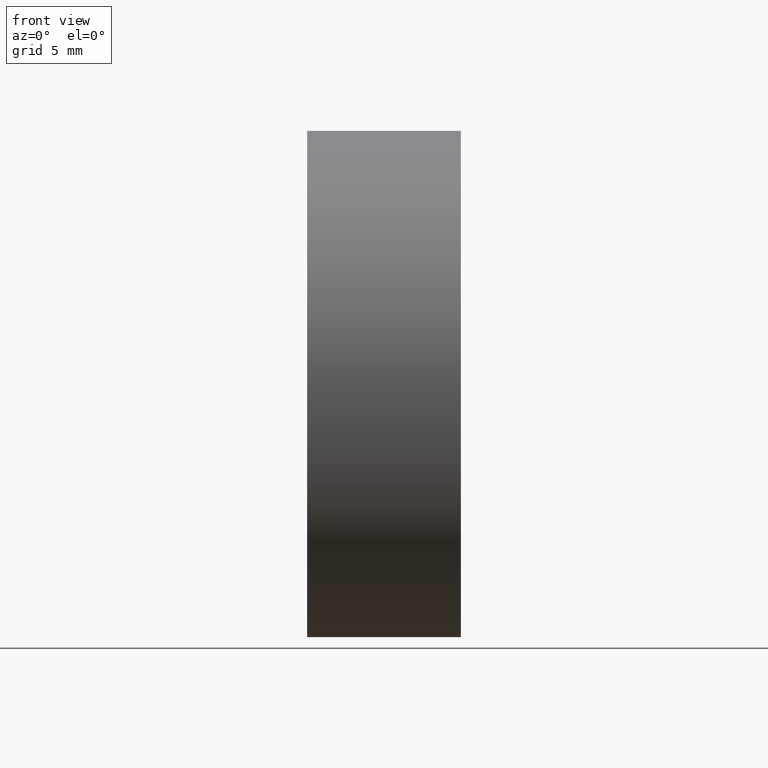
[diagram: clean part render]
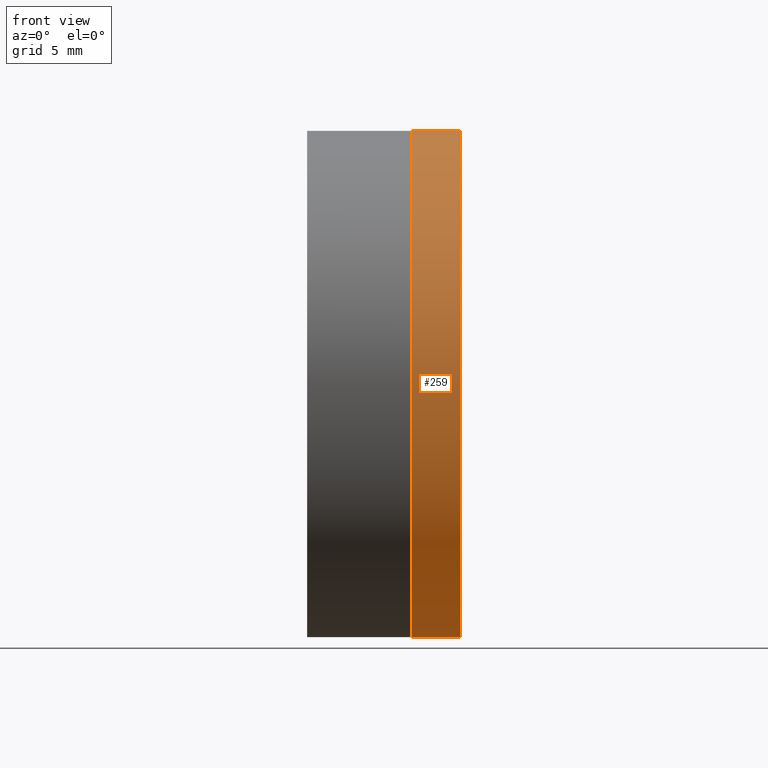
[diagram: same view with one face highlighted and labeled with its STEP entity id]
A machine part, front view. The second image highlights one B-rep face of the part: STEP entity #259.
In plain terms, the highlighted cylindrical surface (partial cylindrical patch) has radius 12.7 mm, axis along (-1, -0, -0).
Its self-contained STEP definition (entity closure, byte-faithful):
#1 = CIRCLE ( 'NONE', #185, 12.70000000000002900 ) ;
#2 = AXIS2_PLACEMENT_3D ( 'NONE', #339, #309, #262 ) ;
#24 = ORIENTED_EDGE ( 'NONE', *, *, #265, .F. ) ;
#25 = CIRCLE ( 'NONE', #2, 12.69999999999999900 ) ;
#37 = CYLINDRICAL_SURFACE ( 'NONE', #290, 12.70000000000001400 ) ;
#41 = CARTESIAN_POINT ( 'NONE',  ( 252.1199418144257200, 0.0000000000000000000, 0.0000000000000000000 ) ) ;
#49 = DIRECTION ( 'NONE',  ( 0.0000000000000000000, 0.0000000000000000000, 1.000000000000000000 ) ) ;
#53 = VERTEX_POINT ( 'NONE', #150 ) ;
#63 = CARTESIAN_POINT ( 'NONE',  ( 257.3378375505981200, 0.0000000000000000000, 0.0000000000000000000 ) ) ;
#84 = LINE ( 'NONE', #307, #240 ) ;
#124 = DIRECTION ( 'NONE',  ( -1.000000000000000000, -0.0000000000000000000, -0.0000000000000000000 ) ) ;
#129 = DIRECTION ( 'NONE',  ( -1.000000000000000000, -0.0000000000000000000, -0.0000000000000000000 ) ) ;
#136 = EDGE_CURVE ( 'NONE', #243, #295, #1, .T. ) ;
#141 = FACE_OUTER_BOUND ( 'NONE', #212, .T. ) ;
#142 = ORIENTED_EDGE ( 'NONE', *, *, #136, .F. ) ;
#147 = DIRECTION ( 'NONE',  ( -1.000000000000000000, -0.0000000000000000000, -0.0000000000000000000 ) ) ;
#150 = CARTESIAN_POINT ( 'NONE',  ( 259.8290739324706900, 1.555301434917139400E-015, -12.69999999999999900 ) ) ;
#178 = CARTESIAN_POINT ( 'NONE',  ( 257.3378375505981200, 1.555301434917142800E-015, -12.70000000000003500 ) ) ;
#180 = LINE ( 'NONE', #220, #272 ) ;
#185 = AXIS2_PLACEMENT_3D ( 'NONE', #63, #124, #49 ) ;
#186 = EDGE_CURVE ( 'NONE', #53, #264, #25, .T. ) ;
#212 = EDGE_LOOP ( 'NONE', ( #24, #314, #341, #142 ) ) ;
#220 = CARTESIAN_POINT ( 'NONE',  ( 252.1199418144257200, 0.0000000000000000000, 12.70000000000001400 ) ) ;
#240 = VECTOR ( 'NONE', #147, 1000.000000000000000 ) ;
#243 = VERTEX_POINT ( 'NONE', #178 ) ;
#245 = CARTESIAN_POINT ( 'NONE',  ( 259.8290739324706900, 0.0000000000000000000, 12.69999999999999900 ) ) ;
#259 = ADVANCED_FACE ( 'NONE', ( #141 ), #37, .T. ) ;
#262 = DIRECTION ( 'NONE',  ( 0.0000000000000000000, 0.0000000000000000000, 1.000000000000000000 ) ) ;
#264 = VERTEX_POINT ( 'NONE', #245 ) ;
#265 = EDGE_CURVE ( 'NONE', #53, #243, #84, .T. ) ;
#272 = VECTOR ( 'NONE', #129, 1000.000000000000000 ) ;
#274 = EDGE_CURVE ( 'NONE', #264, #295, #180, .T. ) ;
#278 = CARTESIAN_POINT ( 'NONE',  ( 257.3378375505981200, 0.0000000000000000000, 12.70000000000003500 ) ) ;
#282 = DIRECTION ( 'NONE',  ( 0.0000000000000000000, 0.0000000000000000000, 1.000000000000000000 ) ) ;
#290 = AXIS2_PLACEMENT_3D ( 'NONE', #41, #292, #282 ) ;
#292 = DIRECTION ( 'NONE',  ( -1.000000000000000000, -0.0000000000000000000, -0.0000000000000000000 ) ) ;
#295 = VERTEX_POINT ( 'NONE', #278 ) ;
#307 = CARTESIAN_POINT ( 'NONE',  ( 252.1199418144257200, 1.555301434917140200E-015, -12.70000000000001400 ) ) ;
#309 = DIRECTION ( 'NONE',  ( -1.000000000000000000, -0.0000000000000000000, -0.0000000000000000000 ) ) ;
#314 = ORIENTED_EDGE ( 'NONE', *, *, #186, .T. ) ;
#339 = CARTESIAN_POINT ( 'NONE',  ( 259.8290739324706900, 0.0000000000000000000, 0.0000000000000000000 ) ) ;
#341 = ORIENTED_EDGE ( 'NONE', *, *, #274, .T. ) ;